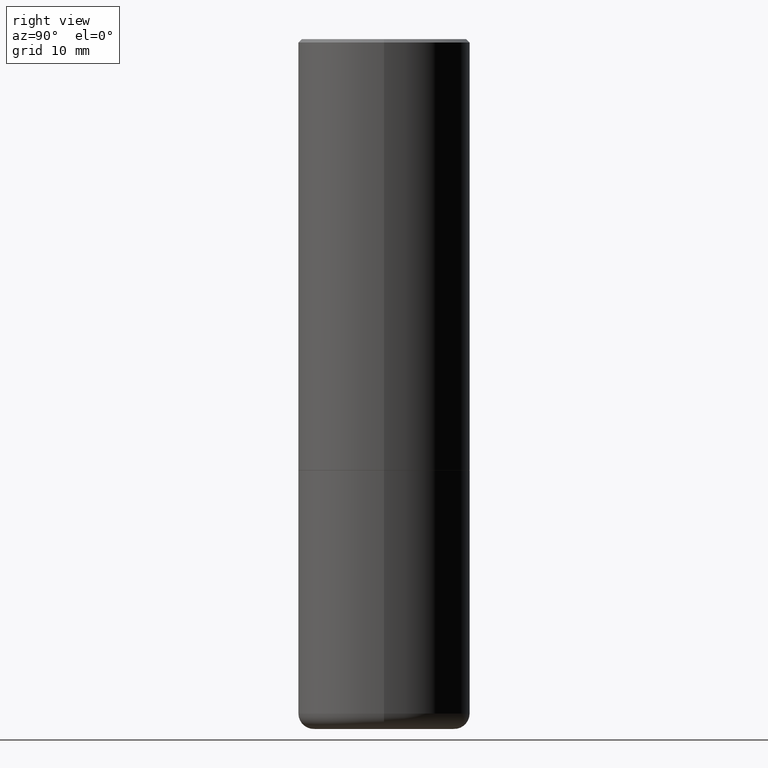
[diagram: clean part render]
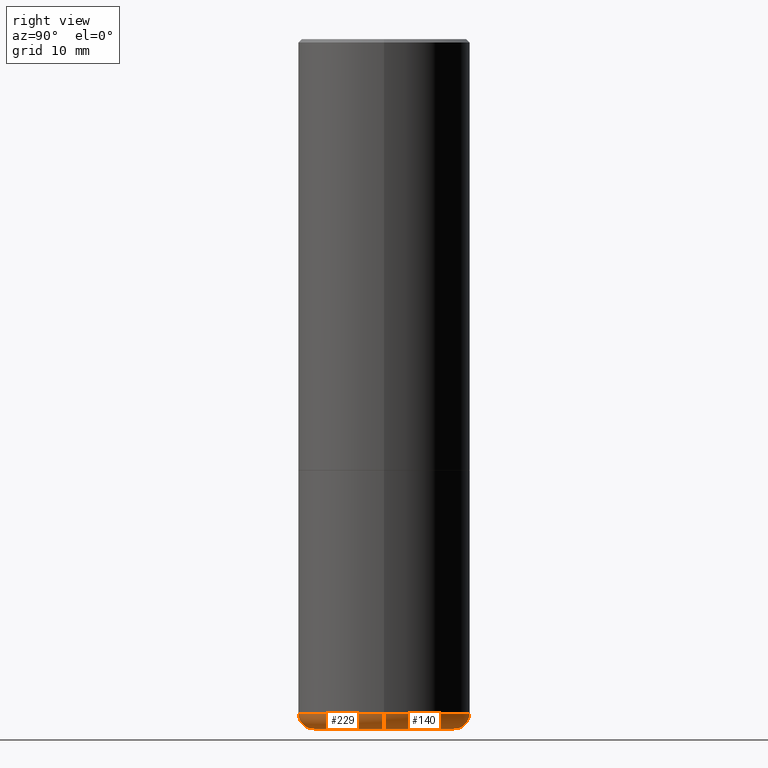
[diagram: same view with one multi-face feature highlighted, each face labeled with its STEP entity id]
A machine part, right view. The highlighted faces form ONE feature: a constant-radius fillet chain: 2 tangent blend faces with common blend radius 2.286 mm. The faces share edges in the B-rep.
Their STEP definitions:
[1] entity #229 (Torus):
#7 = CIRCLE ( 'NONE', #121, 0.08999999999999999667 ) ;
#8 = CIRCLE ( 'NONE', #333, 0.5000000000000000000 ) ;
#12 = EDGE_LOOP ( 'NONE', ( #352, #340, #268, #135 ) ) ;
#15 = AXIS2_PLACEMENT_3D ( 'NONE', #123, #88, #223 ) ;
#21 = CARTESIAN_POINT ( 'NONE',  ( -0.4099999999999999756, -1.073889746410498118E-14, -3.910123341872087988 ) ) ;
#28 = TOROIDAL_SURFACE ( 'NONE', #15, 0.4099999999999999756, 0.08999999999999998279 ) ;
#55 = DIRECTION ( 'NONE',  ( 1.000000000000000000, -6.982962677686269077E-15, 0.000000000000000000 ) ) ;
#66 = DIRECTION ( 'NONE',  ( 1.000000000000000000, -6.982962677686269077E-15, 0.000000000000000000 ) ) ;
#67 = VERTEX_POINT ( 'NONE', #106 ) ;
#88 = DIRECTION ( 'NONE',  ( -2.445468806185136597E-29, 3.491481338843145583E-15, 1.000000000000000000 ) ) ;
#93 = CIRCLE ( 'NONE', #201, 0.08999999999999999667 ) ;
#106 = CARTESIAN_POINT ( 'NONE',  ( 0.5000000000000000000, -1.714360401956452473E-14, -3.910123341872087988 ) ) ;
#120 = CARTESIAN_POINT ( 'NONE',  ( -0.4052897639381357053, -1.059278869042589352E-14, -3.999999999999999556 ) ) ;
#121 = AXIS2_PLACEMENT_3D ( 'NONE', #432, #300, #66 ) ;
#123 = CARTESIAN_POINT ( 'NONE',  ( 9.562084660884571289E-29, -1.365212268072139138E-14, -3.910123341872087988 ) ) ;
#134 = CARTESIAN_POINT ( 'NONE',  ( -0.5000000000000000000, -7.637699335114127230E-15, -3.910123341872087988 ) ) ;
#135 = ORIENTED_EDGE ( 'NONE', *, *, #431, .F. ) ;
#138 = VERTEX_POINT ( 'NONE', #120 ) ;
#155 = EDGE_CURVE ( 'NONE', #138, #285, #210, .T. ) ;
#169 = DIRECTION ( 'NONE',  ( 1.000000000000000000, -6.982962677686266711E-15, 0.000000000000000000 ) ) ;
#201 = AXIS2_PLACEMENT_3D ( 'NONE', #21, #343, #265 ) ;
#210 = CIRCLE ( 'NONE', #247, 0.4052897639381357053 ) ;
#222 = FACE_OUTER_BOUND ( 'NONE', #12, .T. ) ;
#223 = DIRECTION ( 'NONE',  ( 1.000000000000000000, -6.982962677686266711E-15, 4.883557194083113462E-29 ) ) ;
#225 = CARTESIAN_POINT ( 'NONE',  ( 0.4052897639381357053, -1.679604865060086105E-14, -3.999999999999999556 ) ) ;
#229 = ADVANCED_FACE ( 'NONE', ( #222 ), #28, .T. ) ;
#247 = AXIS2_PLACEMENT_3D ( 'NONE', #289, #259, #55 ) ;
#259 = DIRECTION ( 'NONE',  ( -2.445468806185136597E-29, 3.491481338843145583E-15, 1.000000000000000000 ) ) ;
#265 = DIRECTION ( 'NONE',  ( -1.000000000000000000, 7.105427357600990815E-15, 0.000000000000000000 ) ) ;
#268 = ORIENTED_EDGE ( 'NONE', *, *, #277, .T. ) ;
#277 = EDGE_CURVE ( 'NONE', #285, #67, #7, .T. ) ;
#285 = VERTEX_POINT ( 'NONE', #225 ) ;
#289 = CARTESIAN_POINT ( 'NONE',  ( 9.781875224740545266E-29, -1.396592535537258075E-14, -3.999999999999999556 ) ) ;
#300 = DIRECTION ( 'NONE',  ( -6.982962677686266711E-15, -1.000000000000000000, 3.491481338843145583E-15 ) ) ;
#333 = AXIS2_PLACEMENT_3D ( 'NONE', #428, #399, #169 ) ;
#340 = ORIENTED_EDGE ( 'NONE', *, *, #155, .T. ) ;
#343 = DIRECTION ( 'NONE',  ( 7.105427357601001859E-15, 1.000000000000000000, -3.491481338843145583E-15 ) ) ;
#352 = ORIENTED_EDGE ( 'NONE', *, *, #419, .F. ) ;
#399 = DIRECTION ( 'NONE',  ( -2.445468806185136597E-29, 3.491481338843145583E-15, 1.000000000000000000 ) ) ;
#419 = EDGE_CURVE ( 'NONE', #138, #433, #93, .T. ) ;
#428 = CARTESIAN_POINT ( 'NONE',  ( 9.562084660884571289E-29, -1.365212268072139138E-14, -3.910123341872087988 ) ) ;
#431 = EDGE_CURVE ( 'NONE', #433, #67, #8, .T. ) ;
#432 = CARTESIAN_POINT ( 'NONE',  ( 0.4099999999999999756, -1.651513737857276136E-14, -3.910123341872087988 ) ) ;
#433 = VERTEX_POINT ( 'NONE', #134 ) ;
[2] entity #140 (Torus):
#3 = EDGE_CURVE ( 'NONE', #67, #433, #387, .T. ) ;
#7 = CIRCLE ( 'NONE', #121, 0.08999999999999999667 ) ;
#21 = CARTESIAN_POINT ( 'NONE',  ( -0.4099999999999999756, -1.073889746410498118E-14, -3.910123341872087988 ) ) ;
#30 = ORIENTED_EDGE ( 'NONE', *, *, #419, .T. ) ;
#52 = AXIS2_PLACEMENT_3D ( 'NONE', #219, #157, #391 ) ;
#66 = DIRECTION ( 'NONE',  ( 1.000000000000000000, -6.982962677686269077E-15, 0.000000000000000000 ) ) ;
#67 = VERTEX_POINT ( 'NONE', #106 ) ;
#80 = AXIS2_PLACEMENT_3D ( 'NONE', #141, #147, #181 ) ;
#85 = TOROIDAL_SURFACE ( 'NONE', #52, 0.4099999999999999756, 0.08999999999999998279 ) ;
#93 = CIRCLE ( 'NONE', #201, 0.08999999999999999667 ) ;
#106 = CARTESIAN_POINT ( 'NONE',  ( 0.5000000000000000000, -1.714360401956452473E-14, -3.910123341872087988 ) ) ;
#111 = ORIENTED_EDGE ( 'NONE', *, *, #277, .F. ) ;
#120 = CARTESIAN_POINT ( 'NONE',  ( -0.4052897639381357053, -1.059278869042589352E-14, -3.999999999999999556 ) ) ;
#121 = AXIS2_PLACEMENT_3D ( 'NONE', #432, #300, #66 ) ;
#134 = CARTESIAN_POINT ( 'NONE',  ( -0.5000000000000000000, -7.637699335114127230E-15, -3.910123341872087988 ) ) ;
#138 = VERTEX_POINT ( 'NONE', #120 ) ;
#140 = ADVANCED_FACE ( 'NONE', ( #188 ), #85, .T. ) ;
#141 = CARTESIAN_POINT ( 'NONE',  ( 9.562084660884571289E-29, -1.365212268072139138E-14, -3.910123341872087988 ) ) ;
#147 = DIRECTION ( 'NONE',  ( -2.445468806185136597E-29, 3.491481338843145583E-15, 1.000000000000000000 ) ) ;
#157 = DIRECTION ( 'NONE',  ( -2.445468806185136597E-29, 3.491481338843145583E-15, 1.000000000000000000 ) ) ;
#181 = DIRECTION ( 'NONE',  ( 1.000000000000000000, -6.982962677686266711E-15, 0.000000000000000000 ) ) ;
#188 = FACE_OUTER_BOUND ( 'NONE', #309, .T. ) ;
#192 = DIRECTION ( 'NONE',  ( 1.000000000000000000, -6.982962677686269077E-15, 0.000000000000000000 ) ) ;
#201 = AXIS2_PLACEMENT_3D ( 'NONE', #21, #343, #265 ) ;
#219 = CARTESIAN_POINT ( 'NONE',  ( 9.562084660884571289E-29, -1.365212268072139138E-14, -3.910123341872087988 ) ) ;
#225 = CARTESIAN_POINT ( 'NONE',  ( 0.4052897639381357053, -1.679604865060086105E-14, -3.999999999999999556 ) ) ;
#226 = ORIENTED_EDGE ( 'NONE', *, *, #3, .F. ) ;
#228 = AXIS2_PLACEMENT_3D ( 'NONE', #267, #405, #192 ) ;
#265 = DIRECTION ( 'NONE',  ( -1.000000000000000000, 7.105427357600990815E-15, 0.000000000000000000 ) ) ;
#267 = CARTESIAN_POINT ( 'NONE',  ( 9.781875224740545266E-29, -1.396592535537258075E-14, -3.999999999999999556 ) ) ;
#277 = EDGE_CURVE ( 'NONE', #285, #67, #7, .T. ) ;
#285 = VERTEX_POINT ( 'NONE', #225 ) ;
#300 = DIRECTION ( 'NONE',  ( -6.982962677686266711E-15, -1.000000000000000000, 3.491481338843145583E-15 ) ) ;
#309 = EDGE_LOOP ( 'NONE', ( #386, #30, #226, #111 ) ) ;
#343 = DIRECTION ( 'NONE',  ( 7.105427357601001859E-15, 1.000000000000000000, -3.491481338843145583E-15 ) ) ;
#368 = CIRCLE ( 'NONE', #228, 0.4052897639381357053 ) ;
#379 = EDGE_CURVE ( 'NONE', #285, #138, #368, .T. ) ;
#386 = ORIENTED_EDGE ( 'NONE', *, *, #379, .T. ) ;
#387 = CIRCLE ( 'NONE', #80, 0.5000000000000000000 ) ;
#391 = DIRECTION ( 'NONE',  ( 1.000000000000000000, -6.982962677686266711E-15, 4.883557194083113462E-29 ) ) ;
#405 = DIRECTION ( 'NONE',  ( -2.445468806185136597E-29, 3.491481338843145583E-15, 1.000000000000000000 ) ) ;
#419 = EDGE_CURVE ( 'NONE', #138, #433, #93, .T. ) ;
#432 = CARTESIAN_POINT ( 'NONE',  ( 0.4099999999999999756, -1.651513737857276136E-14, -3.910123341872087988 ) ) ;
#433 = VERTEX_POINT ( 'NONE', #134 ) ;